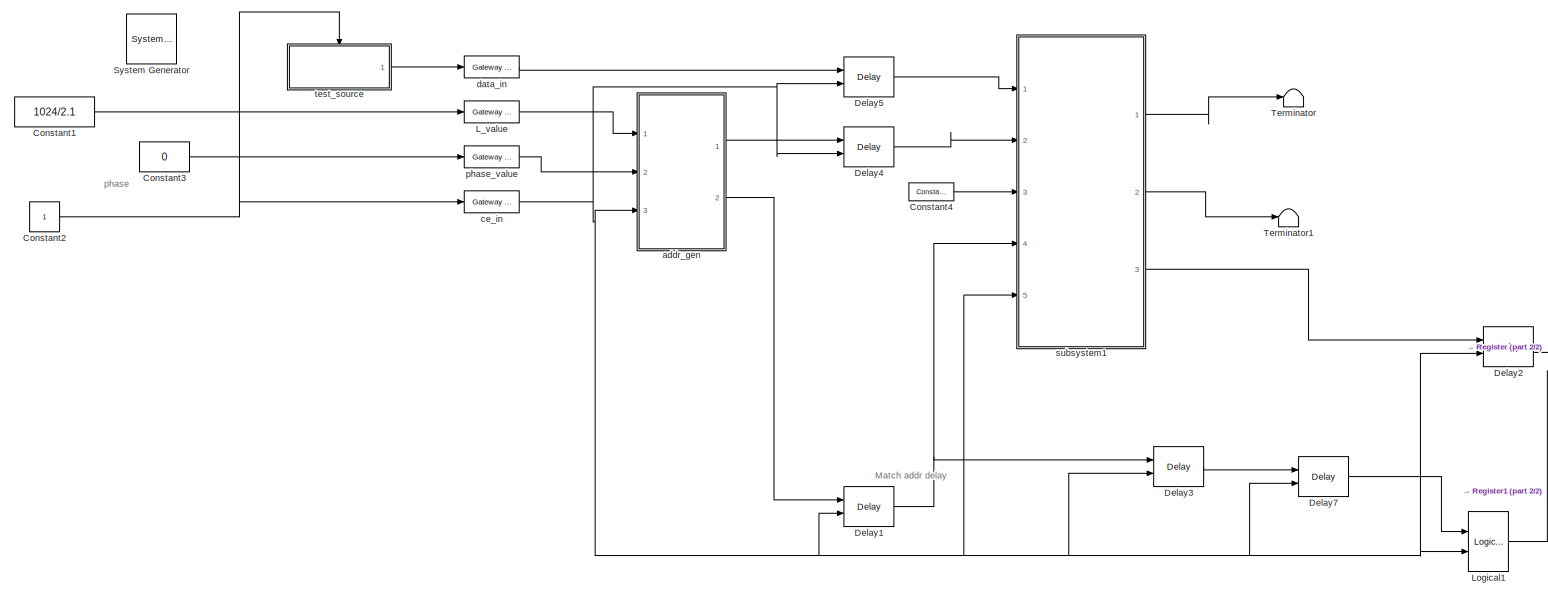
[diagram: root canvas - part 1/2, most of the canvas]
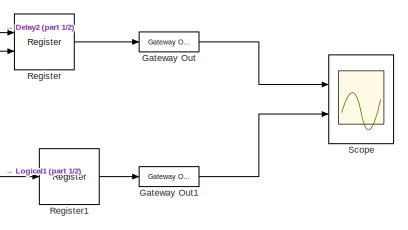
[diagram: root canvas - part 2/2, bottom right region]
MODEL slx_7ac1d25cb432
KIND model
CONFIG AbsTol = auto
CONFIG EnableMultiTasking = off
CONFIG FixedStep = auto
CONFIG MaxStep = auto
CONFIG MinStep = auto
CONFIG RelTol = 1e-3
CONFIG SampleTimeConstraint = Unconstrained
CONFIG SolverName = ode45
CONFIG StartTime = 0.0
CONFIG StopFcn = % figure\n% plot(20*log10(abs(fft(filter_out))));\n
CONFIG StopTime = 100
BLOCK [Reference]  System Generator  REF=xbsIndex_r4/ System Generator
  AttributesFormatString = System\nGenerator
  Ports = []
  SourceBlock = xbsIndex_r4/ System Generator
  SourceType = Xilinx System Generator Block
  Tag = genX
  UserDataPersistent = on
BLOCK [Constant] Constant1
  Value = 1024/2.1
BLOCK [Constant] Constant2
BLOCK [Constant] Constant3
  Value = 0
BLOCK [Reference] Constant4  REF=hdlBasic/Constant
  Ports = [0, 1]
  SourceBlock = hdlBasic/Constant
  SourceType = Constant Block Block
BLOCK [Reference] Delay1  REF=hdlBasic/Delay
  Ports = [2, 1]
  SourceBlock = hdlBasic/Delay
  SourceType = Delay Block
BLOCK [Reference] Delay2  REF=hdlBasic/Delay
  Ports = [2, 1]
  SourceBlock = hdlBasic/Delay
  SourceType = Delay Block
BLOCK [Reference] Delay3  REF=hdlBasic/Delay
  Ports = [2, 1]
  SourceBlock = hdlBasic/Delay
  SourceType = Delay Block
BLOCK [Reference] Delay4  REF=hdlBasic/Delay
  Ports = [2, 1]
  SourceBlock = hdlBasic/Delay
  SourceType = Delay Block
BLOCK [Reference] Delay5  REF=hdlBasic/Delay
  Ports = [2, 1]
  SourceBlock = hdlBasic/Delay
  SourceType = Delay Block
BLOCK [Reference] Delay7  REF=hdlBasic/Delay
  Ports = [2, 1]
  SourceBlock = hdlBasic/Delay
  SourceType = Delay Block
BLOCK [Reference] Gateway Out  REF=hdlBasic/Gateway Out
  Ports = [1, 1]
  SourceBlock = hdlBasic/Gateway Out
  SourceType = Gateway Out Block
BLOCK [Reference] Gateway Out1  REF=hdlBasic/Gateway Out
  Ports = [1, 1]
  SourceBlock = hdlBasic/Gateway Out
  SourceType = Gateway Out Block
BLOCK [Reference] L_value  REF=hdlBasic/Gateway In
  Ports = [1, 1]
  SourceBlock = hdlBasic/Gateway In
  SourceType = Gateway In Block
BLOCK [Reference] Logical1  REF=hdlBasic/Logical
  Ports = [2, 1]
  SourceBlock = hdlBasic/Logical
  SourceType = Logical Block Block
BLOCK [Reference] Register  REF=hdlBasic/Register
  Ports = [2, 1]
  SourceBlock = hdlBasic/Register
  SourceType = Register Block
BLOCK [Reference] Register1  REF=hdlBasic/Register
  Ports = [1, 1]
  SourceBlock = hdlBasic/Register
  SourceType = Register Block
BLOCK [Scope] Scope
  Floating = off
  NumInputPorts = 2
  Ports = [2]
  ScopeSpecificationString = Simulink.scopes.TimeScopeBlockCfg('CurrentConfiguration', extmgr.ConfigurationSet(extmgr.Configuration('Core','General UI',true),extmgr.Configuration('Core','Source UI',true),extmgr.Configuration('Sources','WiredSimulink',true,'DataLoggingVariableName','ScopeData2','DataLoggingSaveFormat','StructureWithTime','DataLoggingLimitDataPoints',true,'DataLoggingDecimation','1','DataLoggingDecimateData',tr...<+2379ch>
BLOCK [Terminator] Terminator
BLOCK [Terminator] Terminator1
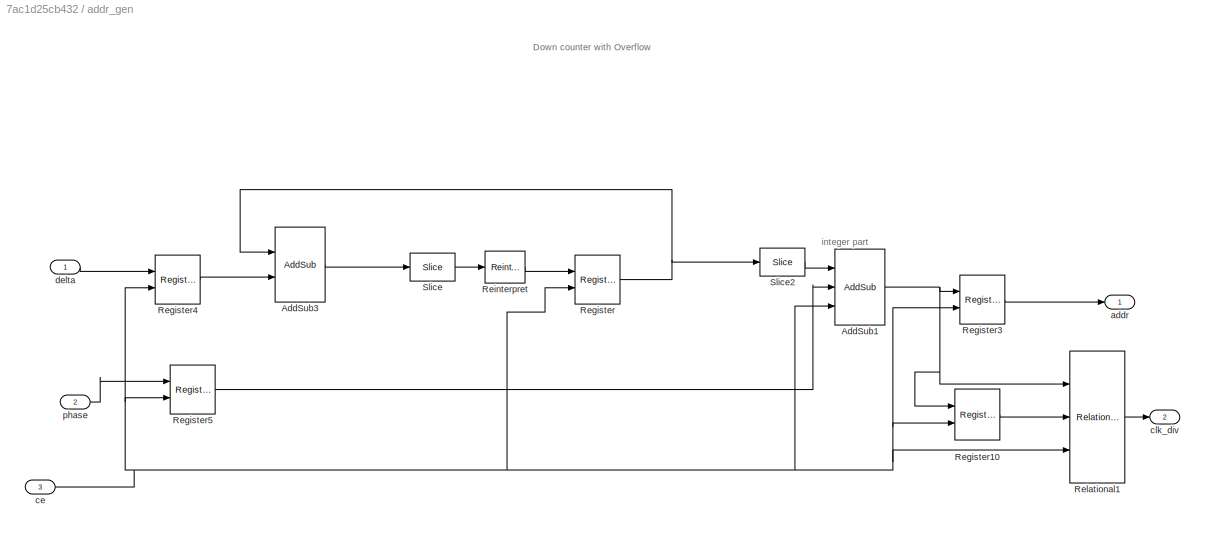
BLOCK [SubSystem] addr_gen
  Ports = [3, 2]
  RequestExecContextInheritance = off
BLOCK [Reference] addr_gen/AddSub1  REF=hdlBasic/AddSub
  Ports = [3, 1]
  SourceBlock = hdlBasic/AddSub
  SourceType = Adder/Subtracter Block
BLOCK [Reference] addr_gen/AddSub3  REF=hdlBasic/AddSub
  Ports = [2, 1]
  SourceBlock = hdlBasic/AddSub
  SourceType = Adder/Subtracter Block
BLOCK [Reference] addr_gen/Register  REF=hdlBasic/Register
  Ports = [2, 1]
  SourceBlock = hdlBasic/Register
  SourceType = Register Block
BLOCK [Reference] addr_gen/Register10  REF=hdlBasic/Register
  Ports = [2, 1]
  SourceBlock = hdlBasic/Register
  SourceType = Register Block
BLOCK [Reference] addr_gen/Register3  REF=hdlBasic/Register
  Ports = [2, 1]
  SourceBlock = hdlBasic/Register
  SourceType = Register Block
BLOCK [Reference] addr_gen/Register4  REF=hdlBasic/Register
  Ports = [2, 1]
  SourceBlock = hdlBasic/Register
  SourceType = Register Block
BLOCK [Reference] addr_gen/Register5  REF=hdlBasic/Register
  Ports = [2, 1]
  SourceBlock = hdlBasic/Register
  SourceType = Register Block
BLOCK [Reference] addr_gen/Reinterpret  REF=hdlBasic/Reinterpret
  Ports = [1, 1]
  SourceBlock = hdlBasic/Reinterpret
  SourceType = Type Reinterpreter Block
BLOCK [Reference] addr_gen/Relational1  REF=hdlBasic/Relational
  Ports = [3, 1]
  SourceBlock = hdlBasic/Relational
  SourceType = Arithmetic Relational Operator Block
BLOCK [Reference] addr_gen/Slice  REF=hdlBasic/Slice
  Ports = [1, 1]
  SourceBlock = hdlBasic/Slice
  SourceType = Bit Slice Extractor Block
BLOCK [Reference] addr_gen/Slice2  REF=hdlBasic/Slice
  Ports = [1, 1]
  SourceBlock = hdlBasic/Slice
  SourceType = Bit Slice Extractor Block
BLOCK [Outport] addr_gen/addr
  VectorParamsAs1DForOutWhenUnconnected = off
BLOCK [Inport] addr_gen/ce
  Port = 3
BLOCK [Outport] addr_gen/clk_div
  Port = 2
  VectorParamsAs1DForOutWhenUnconnected = off
BLOCK [Inport] addr_gen/delta
BLOCK [Inport] addr_gen/phase
  Port = 2
BLOCK [Reference] ce_in  REF=hdlBasic/Gateway In
  Ports = [1, 1]
  SourceBlock = hdlBasic/Gateway In
  SourceType = Gateway In Block
BLOCK [Reference] data_in  REF=hdlBasic/Gateway In
  Ports = [1, 1]
  SourceBlock = hdlBasic/Gateway In
  SourceType = Gateway In Block
BLOCK [Reference] phase_value  REF=hdlBasic/Gateway In
  Ports = [1, 1]
  SourceBlock = hdlBasic/Gateway In
  SourceType = Gateway In Block
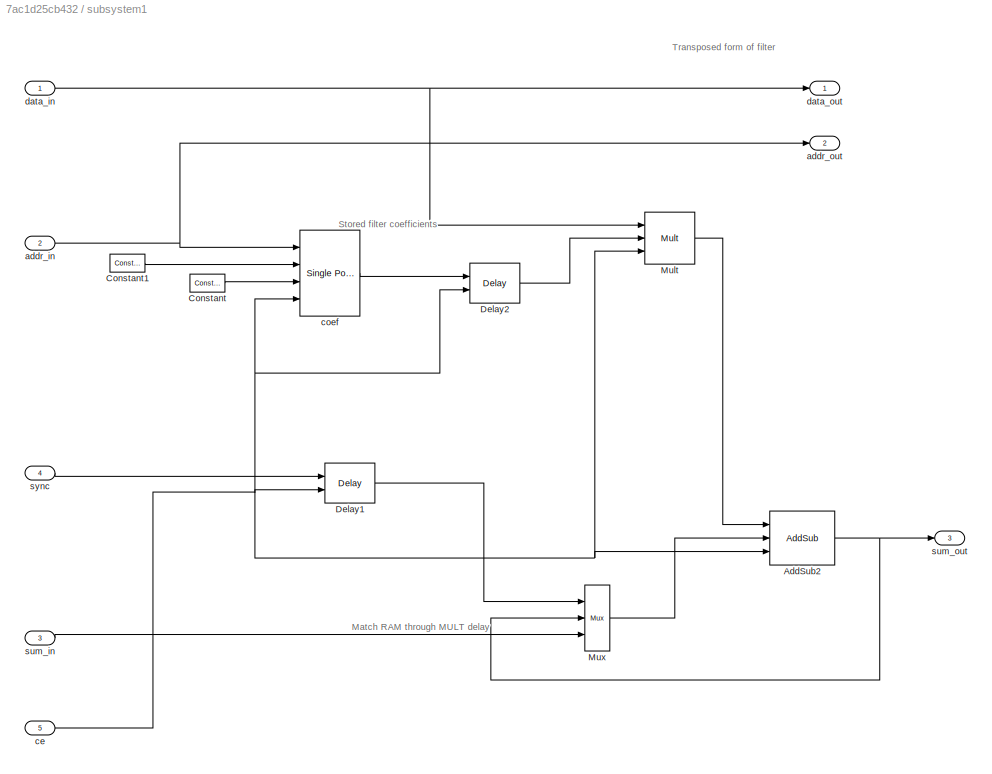
BLOCK [SubSystem] subsystem1
  Ports = [5, 3]
  RequestExecContextInheritance = off
BLOCK [Reference] subsystem1/AddSub2  REF=hdlBasic/AddSub
  Ports = [3, 1]
  SourceBlock = hdlBasic/AddSub
  SourceType = Adder/Subtracter Block
BLOCK [Reference] subsystem1/Constant  REF=hdlBasic/Constant
  Ports = [0, 1]
  SourceBlock = hdlBasic/Constant
  SourceType = Constant Block Block
BLOCK [Reference] subsystem1/Constant1  REF=hdlBasic/Constant
  Ports = [0, 1]
  SourceBlock = hdlBasic/Constant
  SourceType = Constant Block Block
BLOCK [Reference] subsystem1/Delay1  REF=hdlBasic/Delay
  Ports = [2, 1]
  SourceBlock = hdlBasic/Delay
  SourceType = Delay Block
BLOCK [Reference] subsystem1/Delay2  REF=hdlBasic/Delay
  Ports = [2, 1]
  SourceBlock = hdlBasic/Delay
  SourceType = Delay Block
BLOCK [Reference] subsystem1/Mult  REF=hdlBasic/Mult
  Ports = [3, 1]
  SourceBlock = hdlBasic/Mult
  SourceType = Multiplier Block
BLOCK [Reference] subsystem1/Mux  REF=hdlBasic/Mux
  Ports = [3, 1]
  SourceBlock = hdlBasic/Mux
  SourceType = Bus Multiplexer Block
BLOCK [Inport] subsystem1/addr_in
  Port = 2
BLOCK [Outport] subsystem1/addr_out
  Port = 2
  VectorParamsAs1DForOutWhenUnconnected = off
BLOCK [Inport] subsystem1/ce
  Port = 5
BLOCK [Reference] subsystem1/coef  REF=hdlBasic/Single Port RAM
  Ports = [4, 1]
  SourceBlock = hdlBasic/Single Port RAM
  SourceType = Single Port Random Access Memory Block
BLOCK [Inport] subsystem1/data_in
BLOCK [Outport] subsystem1/data_out
  VectorParamsAs1DForOutWhenUnconnected = off
BLOCK [Inport] subsystem1/sum_in
  Port = 3
BLOCK [Outport] subsystem1/sum_out
  Port = 3
  VectorParamsAs1DForOutWhenUnconnected = off
BLOCK [Inport] subsystem1/sync
  Port = 4
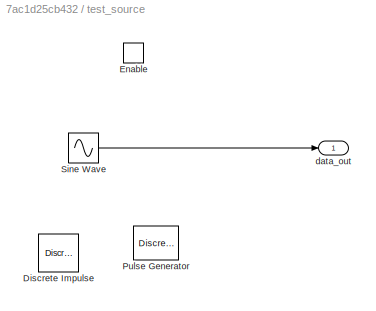
BLOCK [SubSystem] test_source
  Ports = [0, 1, 1]
  RequestExecContextInheritance = off
  TreatAsAtomicUnit = on
BLOCK [Reference] test_source/Discrete Impulse  REF=dspsrcs4/Discrete 
Impulse
  Ports = [0, 1]
  SourceBlock = dspsrcs4/Discrete \nImpulse
  SourceProductBaseCode = DS
  SourceType = Discrete Impulse
BLOCK [EnablePort] test_source/Enable
  Ports = []
BLOCK [DiscretePulseGenerator] test_source/Pulse Generator
  Period = 2048
  Ports = [0, 1]
  PulseWidth = 512
BLOCK [Sin] test_source/Sine Wave
  Ports = [0, 1]
  SampleTime = 1
  Samples = 3*1000
  SineType = Sample based
BLOCK [Outport] test_source/data_out
  VectorParamsAs1DForOutWhenUnconnected = off
ANNOTATION (root): Match addr delay
ANNOTATION (root): phase
ANNOTATION addr_gen: Down counter with Overflow
ANNOTATION addr_gen: integer part
ANNOTATION subsystem1: Match RAM through MULT delay
ANNOTATION subsystem1: Stored filter coefficients
ANNOTATION subsystem1: Transposed form of filter
LINE Constant1:1 -> L_value:1
NET Constant2:1 -> ce_in:1, test_source:enable
LINE Constant3:1 -> phase_value:1
LINE Constant4:1 -> subsystem1:3
NET Delay1:1 -> Delay3:1, subsystem1:4
LINE Delay2:1 -> Register:1
LINE Delay3:1 -> Delay7:1
LINE Delay4:1 -> subsystem1:2
LINE Delay5:1 -> subsystem1:1
LINE Delay7:1 -> Logical1:1
LINE Gateway Out1:1 -> Scope:2
LINE Gateway Out:1 -> Scope:1
LINE L_value:1 -> addr_gen:1
NET Logical1:1 -> Register1:1, Register:2
LINE Register1:1 -> Gateway Out1:1
LINE Register:1 -> Gateway Out:1
NET addr_gen/AddSub1:1 -> addr_gen/Register10:1, addr_gen/Register3:1, addr_gen/Relational1:1
LINE addr_gen/AddSub3:1 -> addr_gen/Slice:1
LINE addr_gen/Register10:1 -> addr_gen/Relational1:2
LINE addr_gen/Register3:1 -> addr_gen/addr:1
LINE addr_gen/Register4:1 -> addr_gen/AddSub3:2
LINE addr_gen/Register5:1 -> addr_gen/AddSub1:2
NET addr_gen/Register:1 -> addr_gen/AddSub3:1, addr_gen/Slice2:1
LINE addr_gen/Reinterpret:1 -> addr_gen/Register:1
LINE addr_gen/Relational1:1 -> addr_gen/clk_div:1
LINE addr_gen/Slice2:1 -> addr_gen/AddSub1:1
LINE addr_gen/Slice:1 -> addr_gen/Reinterpret:1
NET addr_gen/ce:1 -> addr_gen/AddSub1:3, addr_gen/Register10:2, addr_gen/Register3:2, addr_gen/Register4:2, addr_gen/Register5:2, addr_gen/Register:2, addr_gen/Relational1:3
LINE addr_gen/delta:1 -> addr_gen/Register4:1
LINE addr_gen/phase:1 -> addr_gen/Register5:1
LINE addr_gen:1 -> Delay4:1
LINE addr_gen:2 -> Delay1:1
NET ce_in:1 -> Delay1:2, Delay2:2, Delay3:2, Delay4:2, Delay5:2, Delay7:2, Logical1:2, addr_gen:3, subsystem1:5
LINE data_in:1 -> Delay5:1
LINE phase_value:1 -> addr_gen:2
NET subsystem1/AddSub2:1 -> subsystem1/Mux:2, subsystem1/sum_out:1
LINE subsystem1/Constant1:1 -> subsystem1/coef:2
LINE subsystem1/Constant:1 -> subsystem1/coef:3
LINE subsystem1/Delay1:1 -> subsystem1/Mux:1
LINE subsystem1/Delay2:1 -> subsystem1/Mult:2
LINE subsystem1/Mult:1 -> subsystem1/AddSub2:1
LINE subsystem1/Mux:1 -> subsystem1/AddSub2:2
NET subsystem1/addr_in:1 -> subsystem1/addr_out:1, subsystem1/coef:1
NET subsystem1/ce:1 -> subsystem1/AddSub2:3, subsystem1/Delay1:2, subsystem1/Delay2:2, subsystem1/Mult:3, subsystem1/coef:4
LINE subsystem1/coef:1 -> subsystem1/Delay2:1
NET subsystem1/data_in:1 -> subsystem1/Mult:1, subsystem1/data_out:1
LINE subsystem1/sum_in:1 -> subsystem1/Mux:3
LINE subsystem1/sync:1 -> subsystem1/Delay1:1
LINE subsystem1:1 -> Terminator:1
LINE subsystem1:2 -> Terminator1:1
LINE subsystem1:3 -> Delay2:1
LINE test_source/Sine Wave:1 -> test_source/data_out:1
LINE test_source:1 -> data_in:1
note: NET lines group one-source signal fan-out (src -> all destinations, sorted); 1:1 wires keep LINE
